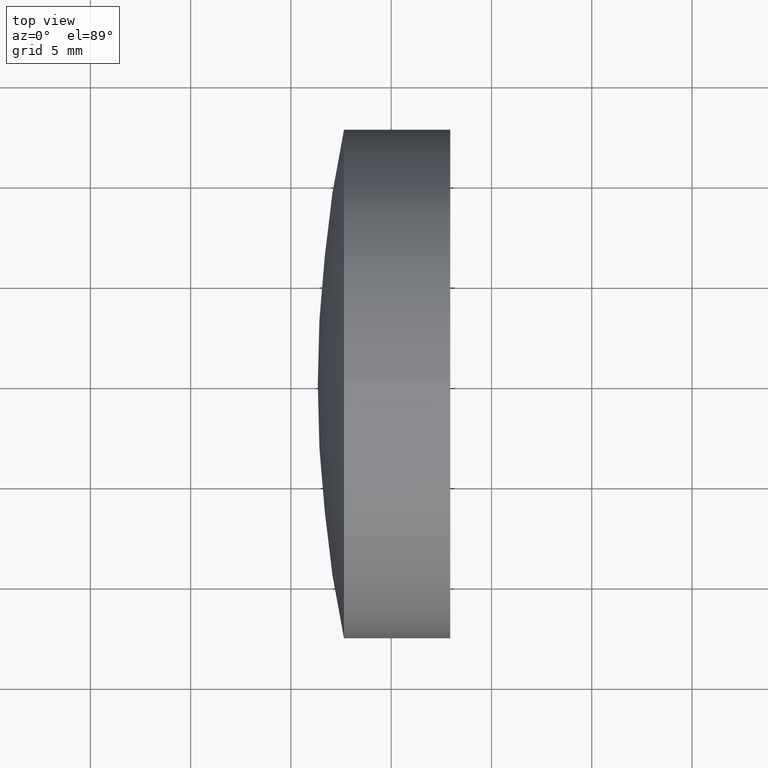
[diagram: clean part render]
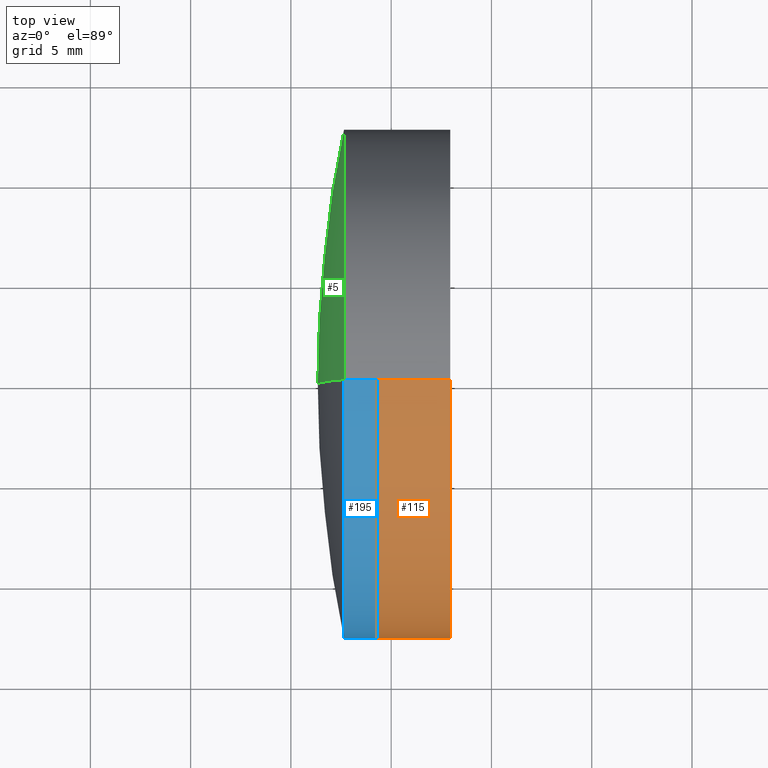
[diagram: same view with three faces highlighted in distinct colors, each labeled with its STEP entity id]
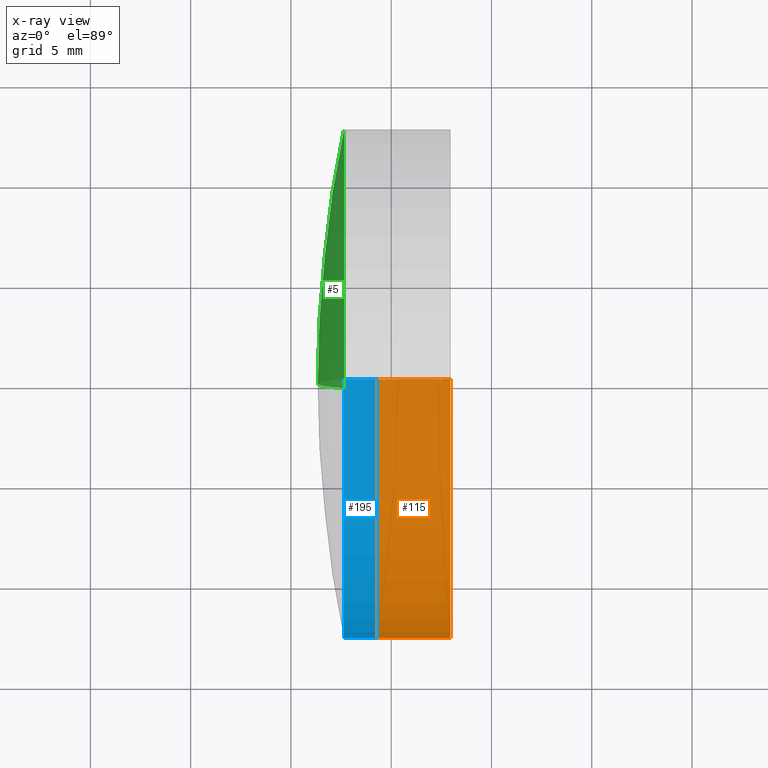
[diagram: x-ray of the same camera — body ghosted, the three highlighted faces saturated]
A machine part, top view with three faces highlighted in distinct colors.
The next image is the same camera in x-ray (body ghosted, the three faces saturated) — at least one of them is partly hidden behind the body in this view.
Their STEP definitions:

[orange] entity #115 — the highlighted cylindrical surface (partial cylindrical patch) has radius 12.7 mm, axis along (-1, -0, -0).
#4 = FACE_OUTER_BOUND ( 'NONE', #139, .T. ) ;
#16 = ORIENTED_EDGE ( 'NONE', *, *, #70, .F. ) ;
#32 = AXIS2_PLACEMENT_3D ( 'NONE', #56, #144, #84 ) ;
#39 = VECTOR ( 'NONE', #104, 1000.000000000000000 ) ;
#43 = DIRECTION ( 'NONE',  ( -1.000000000000000000, -0.0000000000000000000, -0.0000000000000000000 ) ) ;
#51 = CIRCLE ( 'NONE', #201, 12.70000000000012700 ) ;
#56 = CARTESIAN_POINT ( 'NONE',  ( -0.5519199926577972300, 0.0000000000000000000, 0.0000000000000000000 ) ) ;
#70 = EDGE_CURVE ( 'NONE', #191, #312, #250, .T. ) ;
#77 = VECTOR ( 'NONE', #43, 1000.000000000000000 ) ;
#84 = DIRECTION ( 'NONE',  ( 0.0000000000000000000, 0.0000000000000000000, 1.000000000000000000 ) ) ;
#91 = VERTEX_POINT ( 'NONE', #193 ) ;
#99 = CARTESIAN_POINT ( 'NONE',  ( -0.5519199926577972300, 0.0000000000000000000, 12.70000000000000600 ) ) ;
#104 = DIRECTION ( 'NONE',  ( -1.000000000000000000, -0.0000000000000000000, -0.0000000000000000000 ) ) ;
#115 = ADVANCED_FACE ( 'NONE', ( #4 ), #286, .T. ) ;
#116 = LINE ( 'NONE', #231, #39 ) ;
#117 = CARTESIAN_POINT ( 'NONE',  ( 339.2914657323959800, 0.0000000000000000000, 12.69999999999989600 ) ) ;
#121 = CARTESIAN_POINT ( 'NONE',  ( 342.9436857372973000, 0.0000000000000000000, 12.70000000000012700 ) ) ;
#128 = EDGE_CURVE ( 'NONE', #184, #312, #344, .T. ) ;
#134 = CARTESIAN_POINT ( 'NONE',  ( 339.2914657323959800, 0.0000000000000000000, 0.0000000000000000000 ) ) ;
#136 = CARTESIAN_POINT ( 'NONE',  ( 339.2914657323959800, 1.555301434917126000E-015, -12.70000000000017900 ) ) ;
#139 = EDGE_LOOP ( 'NONE', ( #315, #324, #245, #16 ) ) ;
#144 = DIRECTION ( 'NONE',  ( -1.000000000000000000, -0.0000000000000000000, -0.0000000000000000000 ) ) ;
#169 = CARTESIAN_POINT ( 'NONE',  ( 342.9436857372973000, 0.0000000000000000000, 0.0000000000000000000 ) ) ;
#182 = DIRECTION ( 'NONE',  ( -1.000000000000000000, -0.0000000000000000000, -0.0000000000000000000 ) ) ;
#184 = VERTEX_POINT ( 'NONE', #121 ) ;
#191 = VERTEX_POINT ( 'NONE', #136 ) ;
#193 = CARTESIAN_POINT ( 'NONE',  ( 342.9436857372973000, 1.555301434917154200E-015, -12.70000000000012700 ) ) ;
#201 = AXIS2_PLACEMENT_3D ( 'NONE', #169, #285, #331 ) ;
#209 = DIRECTION ( 'NONE',  ( 0.0000000000000000000, 0.0000000000000000000, 1.000000000000000000 ) ) ;
#231 = CARTESIAN_POINT ( 'NONE',  ( -0.5519199926577972300, 1.555301434917139200E-015, -12.70000000000000600 ) ) ;
#245 = ORIENTED_EDGE ( 'NONE', *, *, #128, .T. ) ;
#250 = CIRCLE ( 'NONE', #276, 12.69999999999988400 ) ;
#276 = AXIS2_PLACEMENT_3D ( 'NONE', #134, #182, #209 ) ;
#277 = EDGE_CURVE ( 'NONE', #91, #191, #116, .T. ) ;
#285 = DIRECTION ( 'NONE',  ( -1.000000000000000000, -0.0000000000000000000, -0.0000000000000000000 ) ) ;
#286 = CYLINDRICAL_SURFACE ( 'NONE', #32, 12.70000000000000600 ) ;
#312 = VERTEX_POINT ( 'NONE', #117 ) ;
#315 = ORIENTED_EDGE ( 'NONE', *, *, #277, .F. ) ;
#324 = ORIENTED_EDGE ( 'NONE', *, *, #345, .T. ) ;
#331 = DIRECTION ( 'NONE',  ( 0.0000000000000000000, 0.0000000000000000000, 1.000000000000000000 ) ) ;
#344 = LINE ( 'NONE', #99, #77 ) ;
#345 = EDGE_CURVE ( 'NONE', #91, #184, #51, .T. ) ;

[blue] entity #195 — the highlighted cylindrical surface (partial cylindrical patch) has radius 12.7 mm, axis along (-1, -0, -0).
#13 = VERTEX_POINT ( 'NONE', #270 ) ;
#22 = DIRECTION ( 'NONE',  ( 0.0000000000000000000, 0.0000000000000000000, 1.000000000000000000 ) ) ;
#36 = CYLINDRICAL_SURFACE ( 'NONE', #310, 12.69999999999988600 ) ;
#57 = VERTEX_POINT ( 'NONE', #202 ) ;
#63 = DIRECTION ( 'NONE',  ( -1.000000000000000000, -0.0000000000000000000, -0.0000000000000000000 ) ) ;
#65 = CIRCLE ( 'NONE', #333, 12.69999999999988700 ) ;
#88 = DIRECTION ( 'NONE',  ( -1.000000000000000000, -0.0000000000000000000, -0.0000000000000000000 ) ) ;
#94 = DIRECTION ( 'NONE',  ( -1.000000000000000000, -0.0000000000000000000, -0.0000000000000000000 ) ) ;
#96 = DIRECTION ( 'NONE',  ( 0.0000000000000000000, 0.0000000000000000000, 1.000000000000000000 ) ) ;
#107 = CARTESIAN_POINT ( 'NONE',  ( 124.5233095260452400, 0.0000000000000000000, 0.0000000000000000000 ) ) ;
#110 = ORIENTED_EDGE ( 'NONE', *, *, #337, .T. ) ;
#114 = VECTOR ( 'NONE', #140, 1000.000000000000000 ) ;
#119 = EDGE_CURVE ( 'NONE', #271, #13, #173, .T. ) ;
#130 = LINE ( 'NONE', #290, #114 ) ;
#137 = EDGE_CURVE ( 'NONE', #57, #271, #216, .T. ) ;
#140 = DIRECTION ( 'NONE',  ( -1.000000000000000000, -0.0000000000000000000, -0.0000000000000000000 ) ) ;
#148 = EDGE_LOOP ( 'NONE', ( #183, #306, #110, #200 ) ) ;
#173 = CIRCLE ( 'NONE', #196, 12.69999999999988200 ) ;
#176 = DIRECTION ( 'NONE',  ( -1.000000000000000000, -0.0000000000000000000, -0.0000000000000000000 ) ) ;
#183 = ORIENTED_EDGE ( 'NONE', *, *, #137, .F. ) ;
#195 = ADVANCED_FACE ( 'NONE', ( #210 ), #36, .T. ) ;
#196 = AXIS2_PLACEMENT_3D ( 'NONE', #340, #176, #22 ) ;
#198 = VERTEX_POINT ( 'NONE', #347 ) ;
#200 = ORIENTED_EDGE ( 'NONE', *, *, #119, .F. ) ;
#202 = CARTESIAN_POINT ( 'NONE',  ( 339.2914657323959800, 1.555301434917124800E-015, -12.69999999999988900 ) ) ;
#210 = FACE_OUTER_BOUND ( 'NONE', #148, .T. ) ;
#216 = LINE ( 'NONE', #234, #308 ) ;
#234 = CARTESIAN_POINT ( 'NONE',  ( 124.5233095260452400, 1.555301434917124400E-015, -12.69999999999988600 ) ) ;
#252 = CARTESIAN_POINT ( 'NONE',  ( 339.2914657323959800, 0.0000000000000000000, 0.0000000000000000000 ) ) ;
#254 = DIRECTION ( 'NONE',  ( 0.0000000000000000000, 0.0000000000000000000, 1.000000000000000000 ) ) ;
#270 = CARTESIAN_POINT ( 'NONE',  ( 337.6465557388061100, -1.555301434917122300E-015, 12.69999999999988600 ) ) ;
#271 = VERTEX_POINT ( 'NONE', #289 ) ;
#289 = CARTESIAN_POINT ( 'NONE',  ( 337.6465557388061100, 0.0000000000000000000, -12.69999999999986800 ) ) ;
#290 = CARTESIAN_POINT ( 'NONE',  ( 124.5233095260452400, 0.0000000000000000000, 12.69999999999988600 ) ) ;
#306 = ORIENTED_EDGE ( 'NONE', *, *, #326, .T. ) ;
#308 = VECTOR ( 'NONE', #63, 1000.000000000000000 ) ;
#310 = AXIS2_PLACEMENT_3D ( 'NONE', #107, #88, #254 ) ;
#326 = EDGE_CURVE ( 'NONE', #57, #198, #65, .T. ) ;
#333 = AXIS2_PLACEMENT_3D ( 'NONE', #252, #94, #96 ) ;
#337 = EDGE_CURVE ( 'NONE', #198, #13, #130, .T. ) ;
#340 = CARTESIAN_POINT ( 'NONE',  ( 337.6465557388061100, 0.0000000000000000000, 0.0000000000000000000 ) ) ;
#347 = CARTESIAN_POINT ( 'NONE',  ( 339.2914657323959800, 0.0000000000000000000, 12.69999999999988700 ) ) ;

[green] entity #5 — the highlighted spherical surface has radius 62.4 mm.
#5 = ADVANCED_FACE ( 'NONE', ( #279 ), #141, .T. ) ;
#6 = DIRECTION ( 'NONE',  ( 0.0000000000000000000, 0.0000000000000000000, -1.000000000000000000 ) ) ;
#12 = DIRECTION ( 'NONE',  ( 0.0000000000000000000, 0.0000000000000000000, 1.000000000000000000 ) ) ;
#13 = VERTEX_POINT ( 'NONE', #270 ) ;
#17 = DIRECTION ( 'NONE',  ( -1.000000000000000000, -0.0000000000000000000, -0.0000000000000000000 ) ) ;
#47 = CARTESIAN_POINT ( 'NONE',  ( 398.7404997922063800, 0.0000000000000000000, 1.688039593814494100E-014 ) ) ;
#49 = CIRCLE ( 'NONE', #294, 62.40000000000002000 ) ;
#55 = VERTEX_POINT ( 'NONE', #153 ) ;
#73 = CIRCLE ( 'NONE', #90, 62.40000000000002000 ) ;
#90 = AXIS2_PLACEMENT_3D ( 'NONE', #213, #296, #300 ) ;
#113 = AXIS2_PLACEMENT_3D ( 'NONE', #247, #17, #274 ) ;
#131 = DIRECTION ( 'NONE',  ( -0.0000000000000000000, -1.000000000000000000, -0.0000000000000000000 ) ) ;
#141 = SPHERICAL_SURFACE ( 'NONE', #172, 62.40000000000002000 ) ;
#150 = ORIENTED_EDGE ( 'NONE', *, *, #346, .T. ) ;
#153 = CARTESIAN_POINT ( 'NONE',  ( 336.3404997922063400, 0.0000000000000000000, 1.305949792480519800E-014 ) ) ;
#171 = EDGE_LOOP ( 'NONE', ( #303, #150, #249 ) ) ;
#172 = AXIS2_PLACEMENT_3D ( 'NONE', #47, #131, #6 ) ;
#213 = CARTESIAN_POINT ( 'NONE',  ( 398.7404997922063800, 0.0000000000000000000, 1.688039593814494100E-014 ) ) ;
#223 = CIRCLE ( 'NONE', #113, 12.69999999999988200 ) ;
#247 = CARTESIAN_POINT ( 'NONE',  ( 337.6465557388061100, 0.0000000000000000000, 0.0000000000000000000 ) ) ;
#249 = ORIENTED_EDGE ( 'NONE', *, *, #273, .T. ) ;
#270 = CARTESIAN_POINT ( 'NONE',  ( 337.6465557388061100, -1.555301434917122300E-015, 12.69999999999988600 ) ) ;
#271 = VERTEX_POINT ( 'NONE', #289 ) ;
#273 = EDGE_CURVE ( 'NONE', #271, #55, #49, .T. ) ;
#274 = DIRECTION ( 'NONE',  ( 0.0000000000000000000, 0.0000000000000000000, 1.000000000000000000 ) ) ;
#279 = FACE_OUTER_BOUND ( 'NONE', #171, .T. ) ;
#289 = CARTESIAN_POINT ( 'NONE',  ( 337.6465557388061100, 0.0000000000000000000, -12.69999999999986800 ) ) ;
#294 = AXIS2_PLACEMENT_3D ( 'NONE', #295, #341, #12 ) ;
#295 = CARTESIAN_POINT ( 'NONE',  ( 398.7404997922063800, 0.0000000000000000000, 1.688039593814494100E-014 ) ) ;
#296 = DIRECTION ( 'NONE',  ( 0.0000000000000000000, -1.000000000000000000, -1.224646799147353200E-016 ) ) ;
#300 = DIRECTION ( 'NONE',  ( 0.0000000000000000000, 1.224646799147353200E-016, -1.000000000000000000 ) ) ;
#303 = ORIENTED_EDGE ( 'NONE', *, *, #329, .F. ) ;
#329 = EDGE_CURVE ( 'NONE', #13, #55, #73, .T. ) ;
#341 = DIRECTION ( 'NONE',  ( 0.0000000000000000000, 1.000000000000000000, -0.0000000000000000000 ) ) ;
#346 = EDGE_CURVE ( 'NONE', #13, #271, #223, .T. ) ;